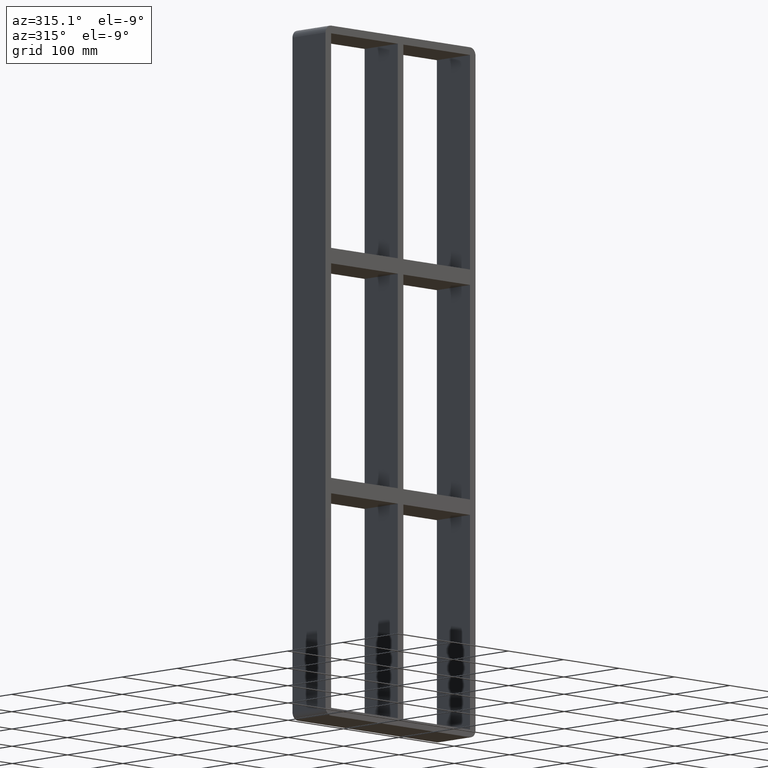
[diagram: clean part render]
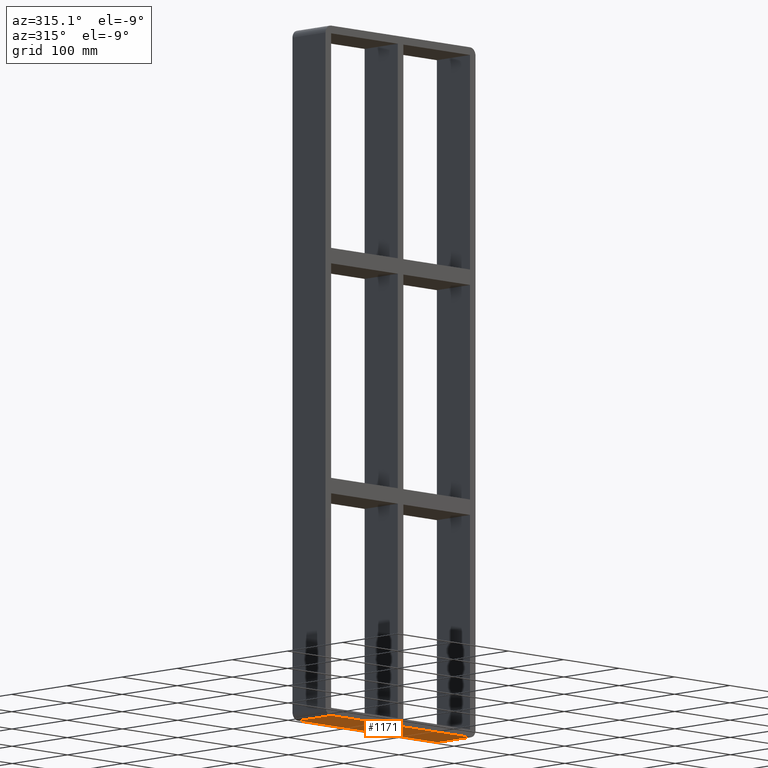
[diagram: same view with one face highlighted and labeled with its STEP entity id]
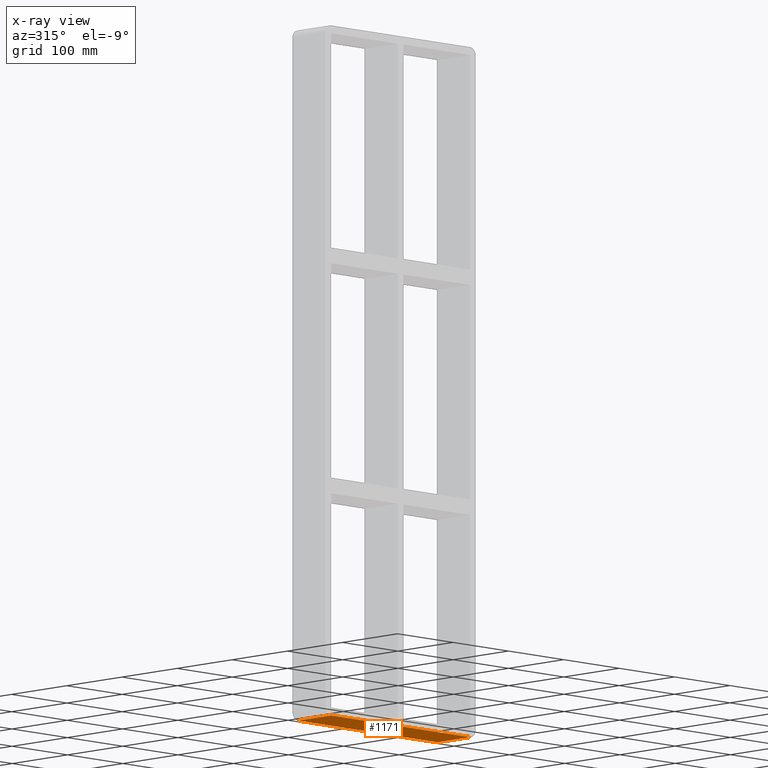
[diagram: x-ray of the same camera — body ghosted, the highlighted face saturated]
A machine part, auxiliary view. The second image highlights one B-rep face of the part: STEP entity #1171.
The next image is the same camera in x-ray: the body ghosted, the highlighted face saturated — about 0% of this face is hidden behind the body in this view.
In plain terms, the highlighted planar face has unit normal (0, 0, -1).
Its self-contained STEP definition (entity closure, byte-faithful):
#614=CARTESIAN_POINT('',(125.5,57.0,-447.0));
#615=VERTEX_POINT('',#614);
#625=CARTESIAN_POINT('',(-125.5,57.0,-447.0));
#626=VERTEX_POINT('',#625);
#627=CARTESIAN_POINT('',(125.5,57.0,-447.0));
#628=DIRECTION('',(-1.0,0.0,0.0));
#629=VECTOR('',#628,251.0);
#630=LINE('',#627,#629);
#631=EDGE_CURVE('',#615,#626,#630,.T.);
#921=CARTESIAN_POINT('',(125.5,-3.0,-447.0));
#922=VERTEX_POINT('',#921);
#930=CARTESIAN_POINT('',(125.5,-3.0,-447.0));
#931=DIRECTION('',(0.0,1.0,0.0));
#932=VECTOR('',#931,60.0);
#933=LINE('',#930,#932);
#934=EDGE_CURVE('',#922,#615,#933,.T.);
#987=CARTESIAN_POINT('',(-125.5,-3.0,-447.0));
#988=VERTEX_POINT('',#987);
#996=CARTESIAN_POINT('',(-125.5,-3.0,-447.0));
#997=DIRECTION('',(1.0,0.0,0.0));
#998=VECTOR('',#997,251.0);
#999=LINE('',#996,#998);
#1000=EDGE_CURVE('',#988,#922,#999,.T.);
#1086=CARTESIAN_POINT('',(-125.5,57.0,-447.0));
#1087=DIRECTION('',(0.0,-1.0,0.0));
#1088=VECTOR('',#1087,60.0);
#1089=LINE('',#1086,#1088);
#1090=EDGE_CURVE('',#626,#988,#1089,.T.);
#1160=CARTESIAN_POINT('',(135.5,0.0,-447.0));
#1161=DIRECTION('',(0.0,0.0,-1.0));
#1162=DIRECTION('',(-1.0,0.0,0.0));
#1163=AXIS2_PLACEMENT_3D('',#1160,#1161,#1162);
#1164=PLANE('',#1163);
#1165=ORIENTED_EDGE('',*,*,#934,.F.);
#1166=ORIENTED_EDGE('',*,*,#1000,.F.);
#1167=ORIENTED_EDGE('',*,*,#1090,.F.);
#1168=ORIENTED_EDGE('',*,*,#631,.F.);
#1169=EDGE_LOOP('',(#1165,#1166,#1167,#1168));
#1170=FACE_OUTER_BOUND('',#1169,.T.);
#1171=ADVANCED_FACE('',(#1170),#1164,.T.);